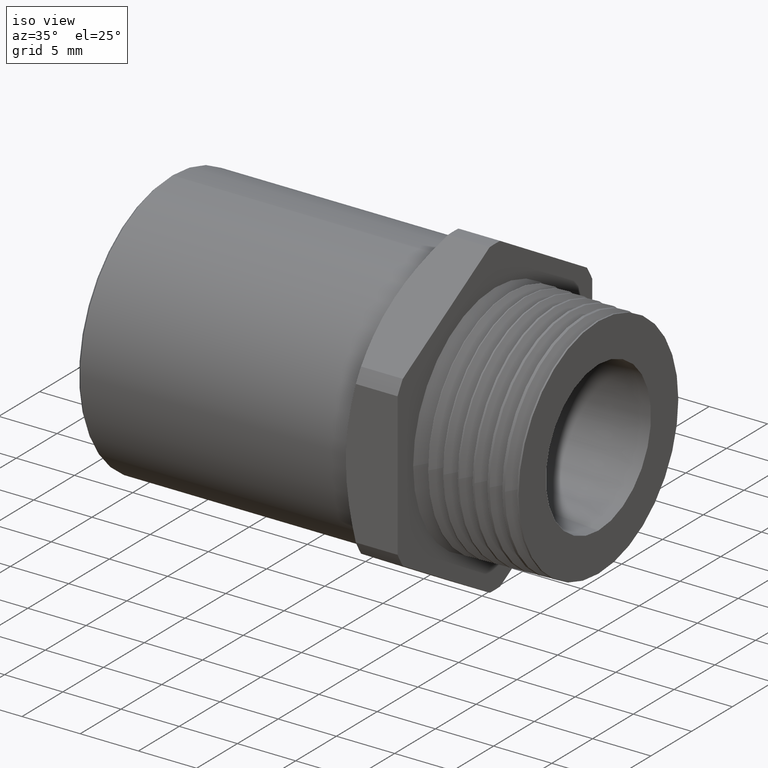
[diagram: clean part render]
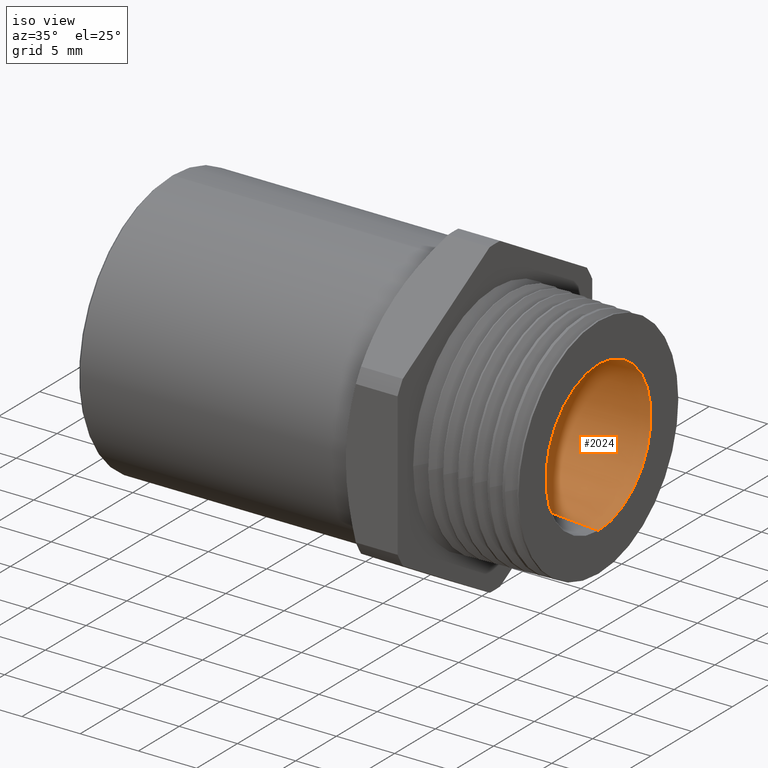
[diagram: same view with one face highlighted and labeled with its STEP entity id]
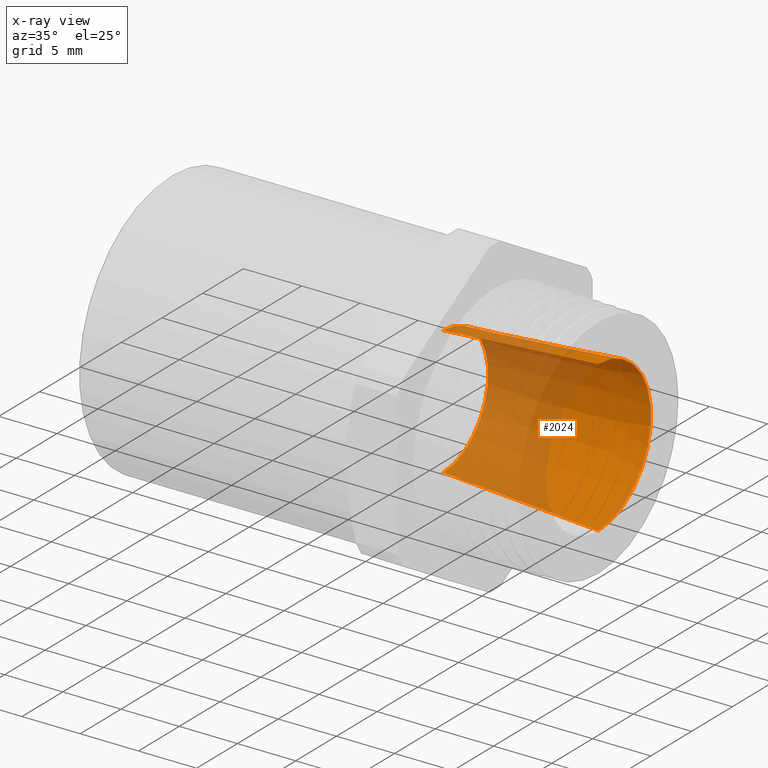
[diagram: x-ray of the same camera — body ghosted, the highlighted face saturated]
A machine part, iso view. The second image highlights one B-rep face of the part: STEP entity #2024.
The next image is the same camera in x-ray: the body ghosted, the highlighted face saturated — about 50% of this face is hidden behind the body in this view.
In plain terms, the highlighted conical surface has half-angle 4 deg.
Its self-contained STEP definition (entity closure, byte-faithful):
#178 = EDGE_CURVE ( 'NONE', #2212, #2232, #728, .T. ) ;
#724 = DIRECTION ( 'NONE',  ( 0.0000000000000000000, 0.0000000000000000000, 1.000000000000000000 ) ) ;
#725 = DIRECTION ( 'NONE',  ( -1.000000000000000000, 0.0000000000000000000, 0.0000000000000000000 ) ) ;
#726 = CARTESIAN_POINT ( 'NONE',  ( -0.5249999999999999100, 0.0000000000000000000, 0.0000000000000000000 ) ) ;
#727 = AXIS2_PLACEMENT_3D ( 'NONE', #726, #725, #724 ) ;
#728 = CIRCLE ( 'NONE', #727, 0.2172499999999999700 ) ;
#1157 = CIRCLE ( 'NONE', #1229, 0.2539615762703430500 ) ;
#1211 = DIRECTION ( 'NONE',  ( 0.0000000000000000000, 0.0000000000000000000, -1.000000000000000000 ) ) ;
#1212 = DIRECTION ( 'NONE',  ( 1.000000000000000000, 0.0000000000000000000, 0.0000000000000000000 ) ) ;
#1213 = AXIS2_PLACEMENT_3D ( 'NONE', #1216, #1212, #1211 ) ;
#1214 = CONICAL_SURFACE ( 'NONE', #1213, 0.2172499999999999700, 0.06981317007977332100 ) ;
#1216 = CARTESIAN_POINT ( 'NONE',  ( -0.5249999999999999100, 0.0000000000000000000, 0.0000000000000000000 ) ) ;
#1221 = FACE_OUTER_BOUND ( 'NONE', #2007, .T. ) ;
#1226 = DIRECTION ( 'NONE',  ( 0.0000000000000000000, 0.0000000000000000000, 1.000000000000000000 ) ) ;
#1227 = DIRECTION ( 'NONE',  ( -1.000000000000000000, 0.0000000000000000000, 0.0000000000000000000 ) ) ;
#1228 = CARTESIAN_POINT ( 'NONE',  ( 6.829619984160658000E-017, 0.0000000000000000000, 0.0000000000000000000 ) ) ;
#1229 = AXIS2_PLACEMENT_3D ( 'NONE', #1228, #1227, #1226 ) ;
#1421 = CARTESIAN_POINT ( 'NONE',  ( 6.829619984160658000E-017, 0.0000000000000000000, -0.2539615762703430500 ) ) ;
#1428 = DIRECTION ( 'NONE',  ( 0.9975640502598242000, 0.0000000000000000000, -0.06975647374412544100 ) ) ;
#1429 = VECTOR ( 'NONE', #1428, 39.37007874015748900 ) ;
#1430 = CARTESIAN_POINT ( 'NONE',  ( -0.5249999999999999100, 0.0000000000000000000, -0.2172499999999999700 ) ) ;
#1431 = LINE ( 'NONE', #1430, #1429 ) ;
#1476 = CARTESIAN_POINT ( 'NONE',  ( 6.829619984160658000E-017, 3.110132314858920100E-017, 0.2539615762703430500 ) ) ;
#1494 = CARTESIAN_POINT ( 'NONE',  ( -0.5249999999999999100, 2.885338743003272500E-017, 0.2172499999999999700 ) ) ;
#1530 = CARTESIAN_POINT ( 'NONE',  ( -0.5249999999999999100, 0.0000000000000000000, -0.2172499999999999700 ) ) ;
#1531 = DIRECTION ( 'NONE',  ( 0.9975640502598242000, 8.542704229054960100E-018, 0.06975647374412544100 ) ) ;
#1532 = VECTOR ( 'NONE', #1531, 39.37007874015748900 ) ;
#1533 = CARTESIAN_POINT ( 'NONE',  ( -0.5249999999999999100, 2.660545171147624800E-017, 0.2172499999999999700 ) ) ;
#1534 = LINE ( 'NONE', #1533, #1532 ) ;
#2007 = EDGE_LOOP ( 'NONE', ( #2012, #2016, #2015, #2008 ) ) ;
#2008 = ORIENTED_EDGE ( 'NONE', *, *, #2011, .F. ) ;
#2011 = EDGE_CURVE ( 'NONE', #2225, #2173, #1157, .T. ) ;
#2012 = ORIENTED_EDGE ( 'NONE', *, *, #2229, .F. ) ;
#2015 = ORIENTED_EDGE ( 'NONE', *, *, #2164, .T. ) ;
#2016 = ORIENTED_EDGE ( 'NONE', *, *, #178, .T. ) ;
#2024 = ADVANCED_FACE ( 'NONE', ( #1221 ), #1214, .F. ) ;
#2164 = EDGE_CURVE ( 'NONE', #2232, #2173, #1431, .T. ) ;
#2173 = VERTEX_POINT ( 'NONE', #1421 ) ;
#2212 = VERTEX_POINT ( 'NONE', #1494 ) ;
#2225 = VERTEX_POINT ( 'NONE', #1476 ) ;
#2229 = EDGE_CURVE ( 'NONE', #2212, #2225, #1534, .T. ) ;
#2232 = VERTEX_POINT ( 'NONE', #1530 ) ;